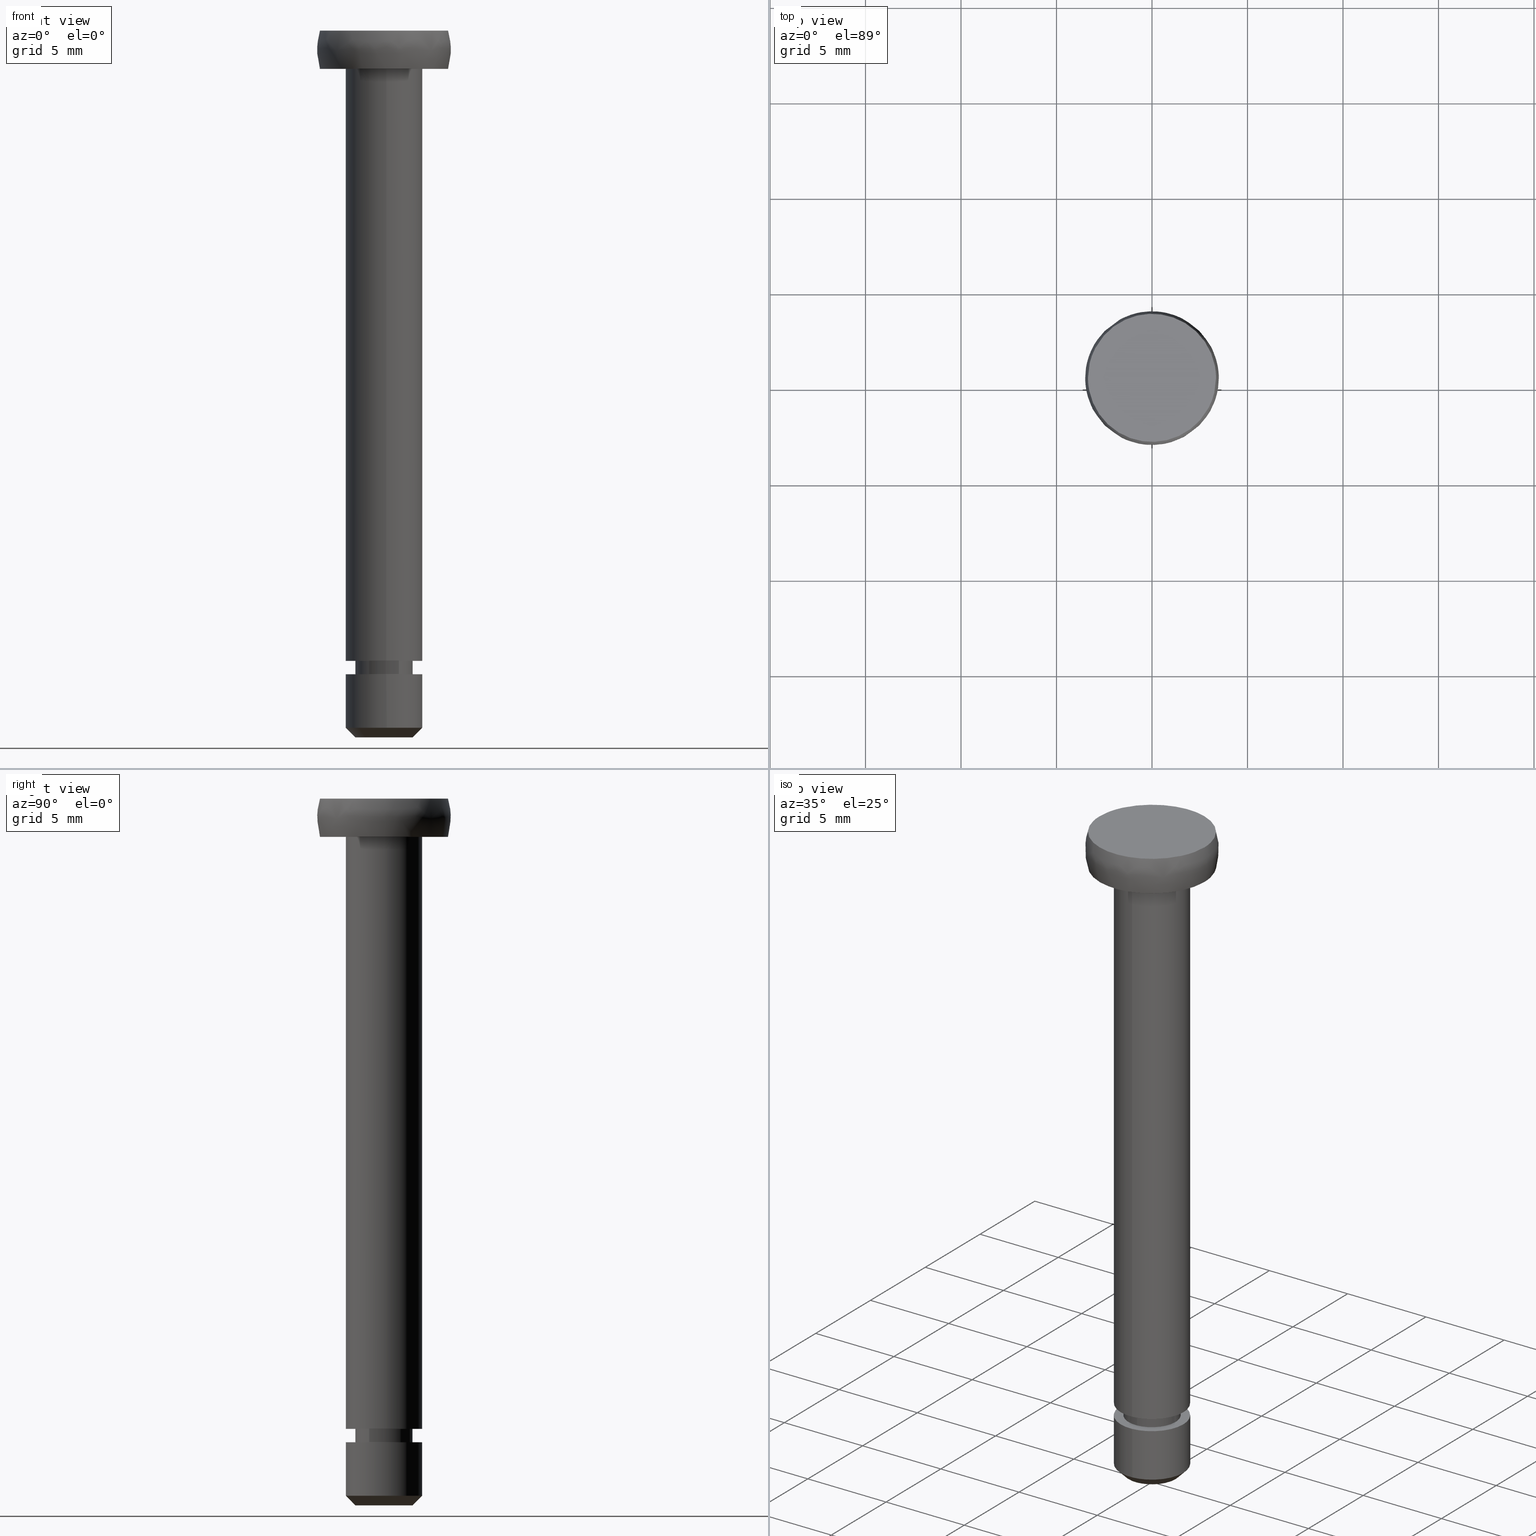
[diagram: canonical four-view strip — front | top / right | iso, engineering-drawing reading convention]
A machine part, canonical four-view strip (front | top / right | iso — engineering-drawing reading convention). The complete STEP part file that produces these views, byte-faithful:
ISO-10303-21;
HEADER;
/****************************************************************
 * Generated by software with PDE/Lib inside                    *
 * PDElib Version 4.4.1-0003, patched  Thursday August 19 11:58 *
 * International Technegroup Inc. (www.iti-oh.com)              *
 ****************************************************************/
FILE_DESCRIPTION((''),'2;1');
FILE_NAME('','2005-04-20T08:50:57',(''),(''),'','CADfix','');
FILE_SCHEMA(('AUTOMOTIVE_DESIGN'));
ENDSEC;
DATA;
#5=APPLICATION_CONTEXT('automotive design');
#6=APPLICATION_PROTOCOL_DEFINITION('Draft International Standard','automotive_design',1998,#5);
#7=PRODUCT_CONTEXT('None',#5,'mechanical');
#8=PRODUCT('shaft','','None',(#7));
#9=PRODUCT_RELATED_PRODUCT_CATEGORY('part','description',(#8));
#10=PRODUCT_DEFINITION_FORMATION('None','None',#8);
#11=PRODUCT_DEFINITION_CONTEXT('part definition',#5,'design');
#12=PRODUCT_DEFINITION('None','None',#10,#11);
#18=(NAMED_UNIT(*)PLANE_ANGLE_UNIT()SI_UNIT($,.RADIAN.));
#19=DIMENSIONAL_EXPONENTS(0.0,0.0,0.0,0.0,0.0,0.0,0.0);
#20=PLANE_ANGLE_MEASURE_WITH_UNIT(PLANE_ANGLE_MEASURE(0.017453292500000),#18);
#24=(CONVERSION_BASED_UNIT('DEGREE',#20)NAMED_UNIT(#19)PLANE_ANGLE_UNIT());
#28=(NAMED_UNIT(*)SI_UNIT($,.STERADIAN.)SOLID_ANGLE_UNIT());
#32=(LENGTH_UNIT()NAMED_UNIT(*)SI_UNIT(.MILLI.,.METRE.));
#34=UNCERTAINTY_MEASURE_WITH_UNIT(LENGTH_MEASURE(0.001000000000000),#32,'DISTANCE_ACCURACY_VALUE','');
#36=(GEOMETRIC_REPRESENTATION_CONTEXT(3)GLOBAL_UNCERTAINTY_ASSIGNED_CONTEXT((#34))GLOBAL_UNIT_ASSIGNED_CONTEXT((#24,#28,#32))REPRESENTATION_CONTEXT('None','None'));
#37=AXIS2_PLACEMENT_3D('',#38,#39,#40);
#38=CARTESIAN_POINT('',(0.0,0.0,0.0));
#39=DIRECTION('',(0.0,0.0,1.0));
#40=DIRECTION('',(1.0,0.0,0.0));
#41=ADVANCED_BREP_SHAPE_REPRESENTATION('',(#37,#940),#36);
#42=PRODUCT_DEFINITION_SHAPE('','',#12);
#43=SHAPE_DEFINITION_REPRESENTATION(#42,#41);
#44=CARTESIAN_POINT('',(-0.236068469313517,1.986019052727332,35.774999999999999));
#45=CARTESIAN_POINT('',(-0.179229457275955,1.992775230897211,35.775000000000006));
#46=CARTESIAN_POINT('',(-0.122097079069714,1.996269596843733,35.775000000000013));
#47=CARTESIAN_POINT('',(1.874172517774020,2.118366675913447,35.774999999999999));
#48=CARTESIAN_POINT('',(1.996269596843733,0.122097079069714,35.775000000000013));
#49=CARTESIAN_POINT('',(2.118366675913447,-1.874172517774020,35.774999999999999));
#50=CARTESIAN_POINT('',(0.122097079069714,-1.996269596843733,35.775000000000013));
#51=CARTESIAN_POINT('',(-0.236068469313517,1.986019052727332,3.205624999999998));
#52=CARTESIAN_POINT('',(-0.179229457275955,1.992775230897211,3.205624999999998));
#53=CARTESIAN_POINT('',(-0.122097079069714,1.996269596843733,3.205624999999998));
#54=CARTESIAN_POINT('',(1.874172517774020,2.118366675913447,3.205624999999998));
#55=CARTESIAN_POINT('',(1.996269596843733,0.122097079069714,3.205624999999998));
#56=CARTESIAN_POINT('',(2.118366675913447,-1.874172517774020,3.205624999999998));
#57=CARTESIAN_POINT('',(0.122097079069714,-1.996269596843733,3.205624999999998));
#65=(BOUNDED_SURFACE()B_SPLINE_SURFACE(2,1,((#44,#51),(#45,#52),(#46,#53),(#47,#54),(#48,#55),(#49,#56),(#50,#57)),.UNSPECIFIED.,.F.,.F.,.U.)B_SPLINE_SURFACE_WITH_KNOTS((3,2,2,3),(2,2),(0.0,0.132548339959391,3.446256838944149,6.759965337928908),(0.0,32.569375000000022),.UNSPECIFIED.)GEOMETRIC_REPRESENTATION_ITEM()RATIONAL_B_SPLINE_SURFACE(((0.977505800795127,0.977505800795127),(0.988284271247462,0.988284271247462),(1.0,1.0),(0.707106781186548,0.707106781186548),(1.0,1.0),(0.707106781186548,0.707106781186548),(1.0,1.0)))REPRESENTATION_ITEM('')SURFACE());
#66=CARTESIAN_POINT('',(-0.236068469374056,1.986019052720137,35.0));
#67=VERTEX_POINT('',#66);
#68=CARTESIAN_POINT('',(2.0,0.0,35.0));
#69=VERTEX_POINT('',#68);
#70=CARTESIAN_POINT('',(-0.236068469374056,1.986019052720137,35.0));
#71=CARTESIAN_POINT('',(-0.118448239364999,2.000000000000000,35.000000000000007));
#72=CARTESIAN_POINT('',(0.0,2.0,35.0));
#73=CARTESIAN_POINT('',(2.000000000000000,2.000000000000000,34.999999999999993));
#74=CARTESIAN_POINT('',(2.0,0.0,35.0));
#82=(BOUNDED_CURVE()B_SPLINE_CURVE(2,(#70,#71,#72,#73,#74),.UNSPECIFIED.,.F.,.U.)B_SPLINE_CURVE_WITH_KNOTS((3,2,3),(0.229562473505341,0.250000000000000,0.500000000000000),.UNSPECIFIED.)CURVE()GEOMETRIC_REPRESENTATION_ITEM()RATIONAL_B_SPLINE_CURVE((0.956026754167691,0.976055948321576,1.0,0.707106781186548,1.0))REPRESENTATION_ITEM(''));
#83=EDGE_CURVE('',#67,#69,#82,.T.);
#84=ORIENTED_EDGE('',*,*,#83,.T.);
#85=CARTESIAN_POINT('',(0.122094911865677,-1.996269729393249,35.000000000000007));
#86=VERTEX_POINT('',#85);
#87=CARTESIAN_POINT('',(2.0,0.0,35.0));
#88=CARTESIAN_POINT('',(1.999999999999999,-1.881414180140796,34.999999999999993));
#89=CARTESIAN_POINT('',(0.122094911865677,-1.996269729393250,35.000000000000007));
#97=(BOUNDED_CURVE()B_SPLINE_CURVE(2,(#87,#88,#89),.UNSPECIFIED.,.F.,.U.)B_SPLINE_CURVE_WITH_KNOTS((3,3),(0.500000000000000,0.739333149563436),.UNSPECIFIED.)CURVE()GEOMETRIC_REPRESENTATION_ITEM()RATIONAL_B_SPLINE_CURVE((1.0,0.719603773822415,0.976072443139095))REPRESENTATION_ITEM(''));
#98=EDGE_CURVE('',#69,#86,#97,.T.);
#99=ORIENTED_EDGE('',*,*,#98,.T.);
#100=CARTESIAN_POINT('',(0.122094938045630,-1.996269727792072,4.000000000000001));
#101=VERTEX_POINT('',#100);
#102=CARTESIAN_POINT('',(0.122094911865677,-1.996269729393249,35.000000000000007));
#103=CARTESIAN_POINT('',(0.122094938045630,-1.996269727792072,4.000000000000001));
#104=QUASI_UNIFORM_CURVE('',1,(#102,#103),.UNSPECIFIED.,.F.,.U.);
#105=EDGE_CURVE('',#86,#101,#104,.T.);
#106=ORIENTED_EDGE('',*,*,#105,.T.);
#107=CARTESIAN_POINT('',(2.0,0.0,4.0));
#108=VERTEX_POINT('',#107);
#109=CARTESIAN_POINT('',(2.0,0.0,4.0));
#110=CARTESIAN_POINT('',(2.000000000000000,-1.881414155421005,4.000000000000001));
#111=CARTESIAN_POINT('',(0.122094938045630,-1.996269727792072,4.000000000000001));
#119=(BOUNDED_CURVE()B_SPLINE_CURVE(2,(#109,#110,#111),.UNSPECIFIED.,.F.,.U.)B_SPLINE_CURVE_WITH_KNOTS((3,3),(0.500000000000000,0.739333147300582),.UNSPECIFIED.)CURVE()GEOMETRIC_REPRESENTATION_ITEM()RATIONAL_B_SPLINE_CURVE((1.0,0.719603776473514,0.976072438289359))REPRESENTATION_ITEM(''));
#120=EDGE_CURVE('',#108,#101,#119,.T.);
#121=ORIENTED_EDGE('',*,*,#120,.F.);
#122=CARTESIAN_POINT('',(-0.236068469374056,1.986019052720137,3.999999999999999));
#123=VERTEX_POINT('',#122);
#124=CARTESIAN_POINT('',(-0.236068469374056,1.986019052720137,3.999999999999999));
#125=CARTESIAN_POINT('',(-0.118448239364999,2.000000000000000,4.000000000000001));
#126=CARTESIAN_POINT('',(0.0,2.0,4.0));
#127=CARTESIAN_POINT('',(2.000000000000000,2.000000000000000,4.000000000000000));
#128=CARTESIAN_POINT('',(2.0,0.0,4.0));
#136=(BOUNDED_CURVE()B_SPLINE_CURVE(2,(#124,#125,#126,#127,#128),.UNSPECIFIED.,.F.,.U.)B_SPLINE_CURVE_WITH_KNOTS((3,2,3),(0.229562473505341,0.250000000000000,0.500000000000000),.UNSPECIFIED.)CURVE()GEOMETRIC_REPRESENTATION_ITEM()RATIONAL_B_SPLINE_CURVE((0.956026754167691,0.976055948321576,1.0,0.707106781186548,1.0))REPRESENTATION_ITEM(''));
#137=EDGE_CURVE('',#123,#108,#136,.T.);
#138=ORIENTED_EDGE('',*,*,#137,.F.);
#139=CARTESIAN_POINT('',(-0.236068469374056,1.986019052720137,35.0));
#140=CARTESIAN_POINT('',(-0.236068469374056,1.986019052720137,3.999999999999999));
#141=QUASI_UNIFORM_CURVE('',1,(#139,#140),.UNSPECIFIED.,.F.,.U.);
#142=EDGE_CURVE('',#67,#123,#141,.T.);
#143=ORIENTED_EDGE('',*,*,#142,.F.);
#144=EDGE_LOOP('',(#84,#99,#106,#121,#138,#143));
#145=FACE_OUTER_BOUND('',#144,.T.);
#146=ADVANCED_FACE('',(#145),#65,.T.);
#147=CARTESIAN_POINT('',(0.122097079069714,-1.996269596843733,35.775000000000013));
#148=CARTESIAN_POINT('',(-1.874172517774020,-2.118366675913447,35.774999999999999));
#149=CARTESIAN_POINT('',(-1.996269596843733,-0.122097079069714,35.775000000000013));
#150=CARTESIAN_POINT('',(-2.111572393465055,1.763086981679002,35.775000000000013));
#151=CARTESIAN_POINT('',(-0.236068469313517,1.986019052727332,35.774999999999999));
#152=CARTESIAN_POINT('',(0.122097079069714,-1.996269596843733,3.205624999999998));
#153=CARTESIAN_POINT('',(-1.874172517774020,-2.118366675913447,3.205624999999998));
#154=CARTESIAN_POINT('',(-1.996269596843733,-0.122097079069714,3.205624999999998));
#155=CARTESIAN_POINT('',(-2.111572393465055,1.763086981679002,3.205624999999998));
#156=CARTESIAN_POINT('',(-0.236068469313517,1.986019052727332,3.205624999999998));
#164=(BOUNDED_SURFACE()B_SPLINE_SURFACE(2,1,((#147,#152),(#148,#153),(#149,#154),(#150,#155),(#151,#156)),.UNSPECIFIED.,.F.,.F.,.U.)B_SPLINE_SURFACE_WITH_KNOTS((3,2,3),(2,2),(0.0,3.313708498984759,6.494868658010128),(0.0,32.569375000000008),.UNSPECIFIED.)GEOMETRIC_REPRESENTATION_ITEM()RATIONAL_B_SPLINE_SURFACE(((1.0,1.0),(0.707106781186548,0.707106781186548),(1.0,1.0),(0.718822509939086,0.718822509939086),(0.977505800795127,0.977505800795127)))REPRESENTATION_ITEM('')SURFACE());
#165=CARTESIAN_POINT('',(-2.0,0.0,35.0));
#166=VERTEX_POINT('',#165);
#167=CARTESIAN_POINT('',(-2.0,0.0,35.0));
#168=CARTESIAN_POINT('',(-2.000000000000000,1.776349051793678,34.999999999999993));
#169=CARTESIAN_POINT('',(-0.236068469374056,1.986019052720137,35.000000000000007));
#177=(BOUNDED_CURVE()B_SPLINE_CURVE(2,(#167,#168,#169),.UNSPECIFIED.,.F.,.U.)B_SPLINE_CURVE_WITH_KNOTS((3,3),(0.0,0.229562473505341),.UNSPECIFIED.)CURVE()GEOMETRIC_REPRESENTATION_ITEM()RATIONAL_B_SPLINE_CURVE((1.0,0.731050832864971,0.956026754167691))REPRESENTATION_ITEM(''));
#178=EDGE_CURVE('',#166,#67,#177,.T.);
#179=ORIENTED_EDGE('',*,*,#178,.T.);
#180=ORIENTED_EDGE('',*,*,#142,.T.);
#181=CARTESIAN_POINT('',(-2.0,0.0,4.0));
#182=VERTEX_POINT('',#181);
#183=CARTESIAN_POINT('',(-2.0,0.0,4.0));
#184=CARTESIAN_POINT('',(-2.000000000000000,1.776349051793678,4.0));
#185=CARTESIAN_POINT('',(-0.236068469374056,1.986019052720137,3.999999999999999));
#193=(BOUNDED_CURVE()B_SPLINE_CURVE(2,(#183,#184,#185),.UNSPECIFIED.,.F.,.U.)B_SPLINE_CURVE_WITH_KNOTS((3,3),(0.0,0.229562473505341),.UNSPECIFIED.)CURVE()GEOMETRIC_REPRESENTATION_ITEM()RATIONAL_B_SPLINE_CURVE((1.0,0.731050832864971,0.956026754167691))REPRESENTATION_ITEM(''));
#194=EDGE_CURVE('',#182,#123,#193,.T.);
#195=ORIENTED_EDGE('',*,*,#194,.F.);
#196=CARTESIAN_POINT('',(0.122094938045630,-1.996269727792072,4.000000000000001));
#197=CARTESIAN_POINT('',(0.061104453083612,-2.000000000000000,4.000000000000001));
#198=CARTESIAN_POINT('',(0.0,-2.0,4.0));
#199=CARTESIAN_POINT('',(-2.000000000000000,-2.000000000000000,4.000000000000000));
#200=CARTESIAN_POINT('',(-2.0,0.0,4.0));
#208=(BOUNDED_CURVE()B_SPLINE_CURVE(2,(#196,#197,#198,#199,#200),.UNSPECIFIED.,.F.,.U.)B_SPLINE_CURVE_WITH_KNOTS((3,2,3),(0.739333147300582,0.750000000000000,1.0),.UNSPECIFIED.)CURVE()GEOMETRIC_REPRESENTATION_ITEM()RATIONAL_B_SPLINE_CURVE((0.976072438289359,0.987503004713034,1.0,0.707106781186548,1.0))REPRESENTATION_ITEM(''));
#209=EDGE_CURVE('',#101,#182,#208,.T.);
#210=ORIENTED_EDGE('',*,*,#209,.F.);
#211=ORIENTED_EDGE('',*,*,#105,.F.);
#212=CARTESIAN_POINT('',(0.122094911865677,-1.996269729393250,35.000000000000007));
#213=CARTESIAN_POINT('',(0.061104439956935,-2.000000000000000,35.0));
#214=CARTESIAN_POINT('',(0.0,-2.0,35.0));
#215=CARTESIAN_POINT('',(-2.000000000000000,-2.000000000000000,34.999999999999993));
#216=CARTESIAN_POINT('',(-2.0,0.0,35.0));
#224=(BOUNDED_CURVE()B_SPLINE_CURVE(2,(#212,#213,#214,#215,#216),.UNSPECIFIED.,.F.,.U.)B_SPLINE_CURVE_WITH_KNOTS((3,2,3),(0.739333149563436,0.750000000000000,1.0),.UNSPECIFIED.)CURVE()GEOMETRIC_REPRESENTATION_ITEM()RATIONAL_B_SPLINE_CURVE((0.976072443139095,0.987503007364133,1.0,0.707106781186548,1.0))REPRESENTATION_ITEM(''));
#225=EDGE_CURVE('',#86,#166,#224,.T.);
#226=ORIENTED_EDGE('',*,*,#225,.T.);
#227=EDGE_LOOP('',(#179,#180,#195,#210,#211,#226));
#228=FACE_OUTER_BOUND('',#227,.T.);
#229=ADVANCED_FACE('',(#228),#164,.T.);
#230=CARTESIAN_POINT('',(-0.177051351985138,1.489514289545500,4.017499925000000));
#231=CARTESIAN_POINT('',(-0.134422092956966,1.494581423172908,4.017499925000000));
#232=CARTESIAN_POINT('',(-0.091572809302285,1.497202197632800,4.017499925000000));
#233=CARTESIAN_POINT('',(1.405629388330515,1.588775006935085,4.017499925000001));
#234=CARTESIAN_POINT('',(1.497202197632800,0.091572809302285,4.017499925000000));
#235=CARTESIAN_POINT('',(1.588775006935085,-1.405629388330515,4.017499925000001));
#236=CARTESIAN_POINT('',(0.091572809302285,-1.497202197632800,4.017499925000000));
#237=CARTESIAN_POINT('',(-0.177051351985138,1.489514289545500,3.282065576875000));
#238=CARTESIAN_POINT('',(-0.134422092956966,1.494581423172908,3.282065576875000));
#239=CARTESIAN_POINT('',(-0.091572809302285,1.497202197632800,3.282065576875000));
#240=CARTESIAN_POINT('',(1.405629388330515,1.588775006935085,3.282065576874999));
#241=CARTESIAN_POINT('',(1.497202197632800,0.091572809302285,3.282065576875000));
#242=CARTESIAN_POINT('',(1.588775006935085,-1.405629388330515,3.282065576874999));
#243=CARTESIAN_POINT('',(0.091572809302285,-1.497202197632800,3.282065576875000));
#251=(BOUNDED_SURFACE()B_SPLINE_SURFACE(2,1,((#230,#237),(#231,#238),(#232,#239),(#233,#240),(#234,#241),(#235,#242),(#236,#243)),.UNSPECIFIED.,.F.,.F.,.U.)B_SPLINE_SURFACE_WITH_KNOTS((3,2,2,3),(2,2),(3.078760800517997,3.141592653589793,4.712388980384690,6.283185307179586),(0.0,1.0),.UNSPECIFIED.)GEOMETRIC_REPRESENTATION_ITEM()RATIONAL_B_SPLINE_SURFACE(((0.977505800795127,0.977505800795127),(0.988284271247462,0.988284271247462),(1.0,1.0),(0.707106781186548,0.707106781186548),(1.0,1.0),(0.707106781186548,0.707106781186548),(1.0,1.0)))REPRESENTATION_ITEM('')SURFACE());
#252=CARTESIAN_POINT('',(-0.177051352064347,1.489514289536084,4.0));
#253=VERTEX_POINT('',#252);
#254=CARTESIAN_POINT('',(1.500000000000000,0.0,4.0));
#255=VERTEX_POINT('',#254);
#256=CARTESIAN_POINT('',(-0.177051352064347,1.489514289536085,4.0));
#257=CARTESIAN_POINT('',(-0.088836179557912,1.500000000000000,4.0));
#258=CARTESIAN_POINT('',(0.0,1.500000000000000,4.0));
#259=CARTESIAN_POINT('',(1.500000000000000,1.500000000000000,4.000000000000000));
#260=CARTESIAN_POINT('',(1.500000000000000,0.0,4.0));
#268=(BOUNDED_CURVE()B_SPLINE_CURVE(2,(#256,#257,#258,#259,#260),.UNSPECIFIED.,.F.,.U.)B_SPLINE_CURVE_WITH_KNOTS((3,2,3),(0.229562473497670,0.250000000000000,0.500000000000000),.UNSPECIFIED.)CURVE()GEOMETRIC_REPRESENTATION_ITEM()RATIONAL_B_SPLINE_CURVE((0.956026754152655,0.976055948312589,1.0,0.707106781186548,1.0))REPRESENTATION_ITEM(''));
#269=EDGE_CURVE('',#253,#255,#268,.T.);
#270=ORIENTED_EDGE('',*,*,#269,.T.);
#271=CARTESIAN_POINT('',(0.091572809399061,-1.497202197626881,4.0));
#272=VERTEX_POINT('',#271);
#273=CARTESIAN_POINT('',(1.500000000000000,0.0,4.0));
#274=CARTESIAN_POINT('',(1.500000000000001,-1.411059100175790,4.000000000000000));
#275=CARTESIAN_POINT('',(0.091572809399061,-1.497202197626881,4.000000000000001));
#283=(BOUNDED_CURVE()B_SPLINE_CURVE(2,(#273,#274,#275),.UNSPECIFIED.,.F.,.U.)B_SPLINE_CURVE_WITH_KNOTS((3,3),(0.500000000000000,0.739332962219663),.UNSPECIFIED.)CURVE()GEOMETRIC_REPRESENTATION_ITEM()RATIONAL_B_SPLINE_CURVE((1.0,0.719603993309298,0.976072041625397))REPRESENTATION_ITEM(''));
#284=EDGE_CURVE('',#255,#272,#283,.T.);
#285=ORIENTED_EDGE('',*,*,#284,.T.);
#286=CARTESIAN_POINT('',(0.091572809399061,-1.497202197626881,3.300003000000000));
#287=VERTEX_POINT('',#286);
#288=CARTESIAN_POINT('',(0.091572809399061,-1.497202197626881,4.0));
#289=CARTESIAN_POINT('',(0.091572809399061,-1.497202197626881,3.300003000000000));
#290=QUASI_UNIFORM_CURVE('',1,(#288,#289),.UNSPECIFIED.,.F.,.U.);
#291=EDGE_CURVE('',#272,#287,#290,.T.);
#292=ORIENTED_EDGE('',*,*,#291,.T.);
#293=CARTESIAN_POINT('',(1.500000000000000,0.0,3.300003000000000));
#294=VERTEX_POINT('',#293);
#295=CARTESIAN_POINT('',(1.500000000000000,0.0,3.300003000000000));
#296=CARTESIAN_POINT('',(1.500000000000001,-1.411059100175790,3.300003000000001));
#297=CARTESIAN_POINT('',(0.091572809399061,-1.497202197626881,3.300003000000000));
#305=(BOUNDED_CURVE()B_SPLINE_CURVE(2,(#295,#296,#297),.UNSPECIFIED.,.F.,.U.)B_SPLINE_CURVE_WITH_KNOTS((3,3),(0.500000000000000,0.739332962219663),.UNSPECIFIED.)CURVE()GEOMETRIC_REPRESENTATION_ITEM()RATIONAL_B_SPLINE_CURVE((1.0,0.719603993309298,0.976072041625397))REPRESENTATION_ITEM(''));
#306=EDGE_CURVE('',#294,#287,#305,.T.);
#307=ORIENTED_EDGE('',*,*,#306,.F.);
#308=CARTESIAN_POINT('',(-0.177051352064347,1.489514289536084,3.300003000000000));
#309=VERTEX_POINT('',#308);
#310=CARTESIAN_POINT('',(-0.177051352064347,1.489514289536085,3.300003000000000));
#311=CARTESIAN_POINT('',(-0.088836179557912,1.500000000000000,3.300003000000000));
#312=CARTESIAN_POINT('',(0.0,1.500000000000000,3.300003000000000));
#313=CARTESIAN_POINT('',(1.500000000000000,1.500000000000000,3.300003000000001));
#314=CARTESIAN_POINT('',(1.500000000000000,0.0,3.300003000000000));
#322=(BOUNDED_CURVE()B_SPLINE_CURVE(2,(#310,#311,#312,#313,#314),.UNSPECIFIED.,.F.,.U.)B_SPLINE_CURVE_WITH_KNOTS((3,2,3),(0.229562473497670,0.250000000000000,0.500000000000000),.UNSPECIFIED.)CURVE()GEOMETRIC_REPRESENTATION_ITEM()RATIONAL_B_SPLINE_CURVE((0.956026754152655,0.976055948312589,1.0,0.707106781186548,1.0))REPRESENTATION_ITEM(''));
#323=EDGE_CURVE('',#309,#294,#322,.T.);
#324=ORIENTED_EDGE('',*,*,#323,.F.);
#325=CARTESIAN_POINT('',(-0.177051352064347,1.489514289536084,4.0));
#326=CARTESIAN_POINT('',(-0.177051352064347,1.489514289536084,3.300003000000000));
#327=QUASI_UNIFORM_CURVE('',1,(#325,#326),.UNSPECIFIED.,.F.,.U.);
#328=EDGE_CURVE('',#253,#309,#327,.T.);
#329=ORIENTED_EDGE('',*,*,#328,.F.);
#330=EDGE_LOOP('',(#270,#285,#292,#307,#324,#329));
#331=FACE_OUTER_BOUND('',#330,.T.);
#332=ADVANCED_FACE('',(#331),#251,.T.);
#333=CARTESIAN_POINT('',(0.091572809302285,-1.497202197632800,4.017499925000000));
#334=CARTESIAN_POINT('',(-1.405629388330515,-1.588775006935085,4.017499925000001));
#335=CARTESIAN_POINT('',(-1.497202197632800,-0.091572809302285,4.017499925000000));
#336=CARTESIAN_POINT('',(-1.583679295098791,1.322315236259252,4.017499925000000));
#337=CARTESIAN_POINT('',(-0.177051351985138,1.489514289545500,4.017499925000000));
#338=CARTESIAN_POINT('',(0.091572809302285,-1.497202197632800,3.282065576875000));
#339=CARTESIAN_POINT('',(-1.405629388330515,-1.588775006935085,3.282065576874999));
#340=CARTESIAN_POINT('',(-1.497202197632800,-0.091572809302285,3.282065576875000));
#341=CARTESIAN_POINT('',(-1.583679295098791,1.322315236259252,3.282065576874999));
#342=CARTESIAN_POINT('',(-0.177051351985138,1.489514289545500,3.282065576875000));
#350=(BOUNDED_SURFACE()B_SPLINE_SURFACE(2,1,((#333,#338),(#334,#339),(#335,#340),(#336,#341),(#337,#342)),.UNSPECIFIED.,.F.,.F.,.U.)B_SPLINE_SURFACE_WITH_KNOTS((3,2,3),(2,2),(0.0,1.570796326794897,3.078760800517997),(0.0,1.0),.UNSPECIFIED.)GEOMETRIC_REPRESENTATION_ITEM()RATIONAL_B_SPLINE_SURFACE(((1.0,1.0),(0.707106781186548,0.707106781186548),(1.0,1.0),(0.718822509939086,0.718822509939086),(0.977505800795127,0.977505800795127)))REPRESENTATION_ITEM('')SURFACE());
#351=CARTESIAN_POINT('',(-1.500000000000000,0.0,4.0));
#352=VERTEX_POINT('',#351);
#353=CARTESIAN_POINT('',(-1.500000000000000,0.0,4.0));
#354=CARTESIAN_POINT('',(-1.500000000000000,1.332261788784360,4.000000000000000));
#355=CARTESIAN_POINT('',(-0.177051352064347,1.489514289536085,4.0));
#363=(BOUNDED_CURVE()B_SPLINE_CURVE(2,(#353,#354,#355),.UNSPECIFIED.,.F.,.U.)B_SPLINE_CURVE_WITH_KNOTS((3,3),(0.0,0.229562473497670),.UNSPECIFIED.)CURVE()GEOMETRIC_REPRESENTATION_ITEM()RATIONAL_B_SPLINE_CURVE((1.0,0.731050832873959,0.956026754152655))REPRESENTATION_ITEM(''));
#364=EDGE_CURVE('',#352,#253,#363,.T.);
#365=ORIENTED_EDGE('',*,*,#364,.T.);
#366=ORIENTED_EDGE('',*,*,#328,.T.);
#367=CARTESIAN_POINT('',(-1.500000000000000,0.0,3.300003000000000));
#368=VERTEX_POINT('',#367);
#369=CARTESIAN_POINT('',(-1.500000000000000,0.0,3.300003000000000));
#370=CARTESIAN_POINT('',(-1.500000000000000,1.332261788784360,3.300003000000000));
#371=CARTESIAN_POINT('',(-0.177051352064347,1.489514289536085,3.300003000000000));
#379=(BOUNDED_CURVE()B_SPLINE_CURVE(2,(#369,#370,#371),.UNSPECIFIED.,.F.,.U.)B_SPLINE_CURVE_WITH_KNOTS((3,3),(0.0,0.229562473497670),.UNSPECIFIED.)CURVE()GEOMETRIC_REPRESENTATION_ITEM()RATIONAL_B_SPLINE_CURVE((1.0,0.731050832873959,0.956026754152655))REPRESENTATION_ITEM(''));
#380=EDGE_CURVE('',#368,#309,#379,.T.);
#381=ORIENTED_EDGE('',*,*,#380,.F.);
#382=CARTESIAN_POINT('',(0.091572809399061,-1.497202197626881,3.300003000000001));
#383=CARTESIAN_POINT('',(0.045829145044930,-1.500000000000000,3.300003000000001));
#384=CARTESIAN_POINT('',(0.0,-1.500000000000000,3.300003000000000));
#385=CARTESIAN_POINT('',(-1.500000000000000,-1.500000000000000,3.300003000000001));
#386=CARTESIAN_POINT('',(-1.500000000000000,0.0,3.300003000000000));
#394=(BOUNDED_CURVE()B_SPLINE_CURVE(2,(#382,#383,#384,#385,#386),.UNSPECIFIED.,.F.,.U.)B_SPLINE_CURVE_WITH_KNOTS((3,2,3),(0.739332962219662,0.750000000000000,1.0),.UNSPECIFIED.)CURVE()GEOMETRIC_REPRESENTATION_ITEM()RATIONAL_B_SPLINE_CURVE((0.976072041625396,0.987502787877249,1.0,0.707106781186548,1.0))REPRESENTATION_ITEM(''));
#395=EDGE_CURVE('',#287,#368,#394,.T.);
#396=ORIENTED_EDGE('',*,*,#395,.F.);
#397=ORIENTED_EDGE('',*,*,#291,.F.);
#398=CARTESIAN_POINT('',(0.091572809399061,-1.497202197626881,4.000000000000001));
#399=CARTESIAN_POINT('',(0.045829145044930,-1.500000000000000,4.000000000000001));
#400=CARTESIAN_POINT('',(0.0,-1.500000000000000,4.0));
#401=CARTESIAN_POINT('',(-1.500000000000000,-1.500000000000000,4.000000000000000));
#402=CARTESIAN_POINT('',(-1.500000000000000,0.0,4.0));
#410=(BOUNDED_CURVE()B_SPLINE_CURVE(2,(#398,#399,#400,#401,#402),.UNSPECIFIED.,.F.,.U.)B_SPLINE_CURVE_WITH_KNOTS((3,2,3),(0.739332962219662,0.750000000000000,1.0),.UNSPECIFIED.)CURVE()GEOMETRIC_REPRESENTATION_ITEM()RATIONAL_B_SPLINE_CURVE((0.976072041625396,0.987502787877249,1.0,0.707106781186548,1.0))REPRESENTATION_ITEM(''));
#411=EDGE_CURVE('',#272,#352,#410,.T.);
#412=ORIENTED_EDGE('',*,*,#411,.T.);
#413=EDGE_LOOP('',(#365,#366,#381,#396,#397,#412));
#414=FACE_OUTER_BOUND('',#413,.T.);
#415=ADVANCED_FACE('',(#414),#350,.T.);
#416=CARTESIAN_POINT('',(0.228201329480721,1.986938386871427,3.370003075000001));
#417=CARTESIAN_POINT('',(1.893911919826415,1.795630305172163,3.370003075000001));
#418=CARTESIAN_POINT('',(1.996269596843733,0.122097079069714,3.370003075000001));
#419=CARTESIAN_POINT('',(2.118366675913447,-1.874172517774020,3.370003075000001));
#420=CARTESIAN_POINT('',(0.122097079069714,-1.996269596843733,3.370003075000001));
#421=CARTESIAN_POINT('',(0.228201329480721,1.986938386871427,0.428249923124985));
#422=CARTESIAN_POINT('',(1.893911919826415,1.795630305172163,0.428249923124985));
#423=CARTESIAN_POINT('',(1.996269596843733,0.122097079069714,0.428249923124985));
#424=CARTESIAN_POINT('',(2.118366675913447,-1.874172517774020,0.428249923124985));
#425=CARTESIAN_POINT('',(0.122097079069714,-1.996269596843733,0.428249923124985));
#433=(BOUNDED_SURFACE()B_SPLINE_SURFACE(2,1,((#416,#421),(#417,#422),(#418,#423),(#419,#424),(#420,#425)),.UNSPECIFIED.,.F.,.F.,.U.)B_SPLINE_SURFACE_WITH_KNOTS((3,2,3),(2,2),(0.0,2.916063479106587,6.229771978091346),(0.0,2.941753151875016),.UNSPECIFIED.)GEOMETRIC_REPRESENTATION_ITEM()RATIONAL_B_SPLINE_SURFACE(((0.938140952186599,0.938140952186599),(0.742253967444162,0.742253967444162),(1.0,1.0),(0.707106781186548,0.707106781186548),(1.0,1.0)))REPRESENTATION_ITEM('')SURFACE());
#434=CARTESIAN_POINT('',(0.228201329546129,1.986938386863915,0.499999999999986));
#435=VERTEX_POINT('',#434);
#436=CARTESIAN_POINT('',(2.0,0.0,0.499999999999986));
#437=VERTEX_POINT('',#436);
#438=CARTESIAN_POINT('',(0.228201329546129,1.986938386863915,0.499999999999986));
#439=CARTESIAN_POINT('',(2.0,1.783446011319636,0.499999999999986));
#440=CARTESIAN_POINT('',(2.0,0.0,0.499999999999986));
#448=(BOUNDED_CURVE()B_SPLINE_CURVE(2,(#438,#439,#440),.UNSPECIFIED.,.F.,.U.)B_SPLINE_CURVE_WITH_KNOTS((3,3),(0.269767755887751,0.500000000000000),.UNSPECIFIED.)CURVE()GEOMETRIC_REPRESENTATION_ITEM()RATIONAL_B_SPLINE_CURVE((0.957343736438685,0.730266147789276,1.0))REPRESENTATION_ITEM(''));
#449=EDGE_CURVE('',#435,#437,#448,.T.);
#450=ORIENTED_EDGE('',*,*,#449,.F.);
#451=CARTESIAN_POINT('',(0.228201329553121,1.986938386863112,3.300003000000000));
#452=VERTEX_POINT('',#451);
#453=CARTESIAN_POINT('',(0.228201329553121,1.986938386863112,3.300003000000000));
#454=CARTESIAN_POINT('',(0.228201329546129,1.986938386863915,0.499999999999986));
#455=QUASI_UNIFORM_CURVE('',1,(#453,#454),.UNSPECIFIED.,.F.,.U.);
#456=EDGE_CURVE('',#452,#435,#455,.T.);
#457=ORIENTED_EDGE('',*,*,#456,.F.);
#458=CARTESIAN_POINT('',(2.0,0.0,3.300003000000000));
#459=VERTEX_POINT('',#458);
#460=CARTESIAN_POINT('',(0.228201329553121,1.986938386863113,3.300003000000000));
#461=CARTESIAN_POINT('',(2.000000000000000,1.783446011307003,3.300003000000000));
#462=CARTESIAN_POINT('',(2.0,0.0,3.300003000000000));
#470=(BOUNDED_CURVE()B_SPLINE_CURVE(2,(#460,#461,#462),.UNSPECIFIED.,.F.,.U.)B_SPLINE_CURVE_WITH_KNOTS((3,3),(0.269767755888942,0.500000000000000),.UNSPECIFIED.)CURVE()GEOMETRIC_REPRESENTATION_ITEM()RATIONAL_B_SPLINE_CURVE((0.957343736436335,0.730266147790671,1.0))REPRESENTATION_ITEM(''));
#471=EDGE_CURVE('',#452,#459,#470,.T.);
#472=ORIENTED_EDGE('',*,*,#471,.T.);
#473=CARTESIAN_POINT('',(0.122097270444627,-1.996269585138724,3.300003000000000));
#474=VERTEX_POINT('',#473);
#475=CARTESIAN_POINT('',(2.0,0.0,3.300003000000000));
#476=CARTESIAN_POINT('',(1.999999999999999,-1.881411772409431,3.300003000000001));
#477=CARTESIAN_POINT('',(0.122097270444627,-1.996269585138724,3.300003000000001));
#485=(BOUNDED_CURVE()B_SPLINE_CURVE(2,(#475,#476,#477),.UNSPECIFIED.,.F.,.U.)B_SPLINE_CURVE_WITH_KNOTS((3,3),(0.500000000000000,0.739332929159137),.UNSPECIFIED.)CURVE()GEOMETRIC_REPRESENTATION_ITEM()RATIONAL_B_SPLINE_CURVE((1.0,0.719604032042113,0.976071970770408))REPRESENTATION_ITEM(''));
#486=EDGE_CURVE('',#459,#474,#485,.T.);
#487=ORIENTED_EDGE('',*,*,#486,.T.);
#488=CARTESIAN_POINT('',(0.139507635269696,-1.995052132155349,0.500000000000888));
#489=VERTEX_POINT('',#488);
#490=CARTESIAN_POINT('',(0.122097270444627,-1.996269585138724,3.300003000000000));
#491=CARTESIAN_POINT('',(0.139507635269696,-1.995052132155349,0.500000000000888));
#492=QUASI_UNIFORM_CURVE('',1,(#490,#491),.UNSPECIFIED.,.F.,.U.);
#493=EDGE_CURVE('',#474,#489,#492,.T.);
#494=ORIENTED_EDGE('',*,*,#493,.T.);
#495=CARTESIAN_POINT('',(2.0,0.0,0.499999999999986));
#496=CARTESIAN_POINT('',(1.999997343887232,-1.864992188086876,0.500000000000437));
#497=CARTESIAN_POINT('',(0.139507635269696,-1.995052132155349,0.500000000000888));
#505=(BOUNDED_CURVE()B_SPLINE_CURVE(2,(#495,#496,#497),.UNSPECIFIED.,.F.,.U.)B_SPLINE_CURVE_WITH_KNOTS((3,3),(0.500000000000000,0.737829682996365),.UNSPECIFIED.)CURVE()GEOMETRIC_REPRESENTATION_ITEM()RATIONAL_B_SPLINE_CURVE((1.0,0.721365194471247,0.972871408707751))REPRESENTATION_ITEM(''));
#506=EDGE_CURVE('',#437,#489,#505,.T.);
#507=ORIENTED_EDGE('',*,*,#506,.F.);
#508=EDGE_LOOP('',(#450,#457,#472,#487,#494,#507));
#509=FACE_OUTER_BOUND('',#508,.T.);
#510=ADVANCED_FACE('',(#509),#433,.T.);
#511=CARTESIAN_POINT('',(0.169067162341419,-1.993396783482150,3.370003075000001));
#512=CARTESIAN_POINT('',(0.145697123735198,-1.994826156276324,3.370003075000002));
#513=CARTESIAN_POINT('',(-1.874172517774020,-2.118366675913447,3.370003075000001));
#514=CARTESIAN_POINT('',(-1.996269596843733,-0.122097079069714,3.370003075000001));
#515=CARTESIAN_POINT('',(-2.118366675913447,1.874172517774020,3.370003075000001));
#516=CARTESIAN_POINT('',(-0.122097079069714,1.996269596843733,3.370003075000001));
#517=CARTESIAN_POINT('',(0.053462436193093,2.007007276789556,3.370003075000001));
#518=CARTESIAN_POINT('',(0.244162554987188,1.985105228427872,3.370003075000001));
#519=CARTESIAN_POINT('',(0.260204711626136,1.983262774984456,3.370003075000001));
#520=CARTESIAN_POINT('',(0.169067162341419,-1.993396783482150,0.428249923124985));
#521=CARTESIAN_POINT('',(0.145697123735198,-1.994826156276324,0.428249923124985));
#522=CARTESIAN_POINT('',(-1.874172517774020,-2.118366675913447,0.428249923124985));
#523=CARTESIAN_POINT('',(-1.996269596843733,-0.122097079069714,0.428249923124985));
#524=CARTESIAN_POINT('',(-2.118366675913447,1.874172517774020,0.428249923124985));
#525=CARTESIAN_POINT('',(-0.122097079069714,1.996269596843733,0.428249923124985));
#526=CARTESIAN_POINT('',(0.053462436193093,2.007007276789556,0.428249923124985));
#527=CARTESIAN_POINT('',(0.244162554987188,1.985105228427872,0.428249923124985));
#528=CARTESIAN_POINT('',(0.260204711626136,1.983262774984456,0.428249923124985));
#536=(BOUNDED_SURFACE()B_SPLINE_SURFACE(2,1,((#511,#520),(#512,#521),(#513,#522),(#514,#523),(#515,#524),(#516,#525),(#517,#526),(#518,#527),(#519,#528)),.UNSPECIFIED.,.F.,.F.,.U.)B_SPLINE_SURFACE_WITH_KNOTS((3,1,2,2,1,3),(2,2),(0.0,0.055674309130212,3.369382808114971,6.683091307099731,7.080736326977903,7.115963870190234),(0.0,2.941753151875017),.UNSPECIFIED.)GEOMETRIC_REPRESENTATION_ITEM()RATIONAL_B_SPLINE_SURFACE(((1.009841920380962,1.009841920380962),(1.004920960190481,1.004920960190481),(0.707106781186548,0.707106781186548),(1.0,1.0),(0.707106781186548,0.707106781186548),(1.0,1.0),(0.964852813742386,0.964852813742386),(0.935774536891050,0.935774536891050),(0.933408121595502,0.933408121595502)))REPRESENTATION_ITEM('')SURFACE());
#537=CARTESIAN_POINT('',(-0.156918191469679,1.993834667466965,0.500000000001790));
#538=VERTEX_POINT('',#537);
#539=CARTESIAN_POINT('',(-0.156918191469679,1.993834667466965,0.500000000001790));
#540=CARTESIAN_POINT('',(-0.078580214029250,2.000000000000000,0.499999999999986));
#541=CARTESIAN_POINT('',(0.0,2.0,0.499999999999986));
#542=CARTESIAN_POINT('',(0.114474470116638,2.000000000000000,0.499999999999986));
#543=CARTESIAN_POINT('',(0.228201329546129,1.986938386863915,0.499999999999986));
#551=(BOUNDED_CURVE()B_SPLINE_CURVE(2,(#539,#540,#541,#542,#543),.UNSPECIFIED.,.F.,.U.)B_SPLINE_CURVE_WITH_KNOTS((3,2,3),(0.236331300630386,0.250000000000000,0.269767755887751),.UNSPECIFIED.)CURVE()GEOMETRIC_REPRESENTATION_ITEM()RATIONAL_B_SPLINE_CURVE((0.969723356166846,0.983986122578561,1.0,0.976840633397272,0.957343736438685))REPRESENTATION_ITEM(''));
#552=EDGE_CURVE('',#538,#435,#551,.T.);
#553=ORIENTED_EDGE('',*,*,#552,.F.);
#554=CARTESIAN_POINT('',(-2.0,0.0,0.499999999999986));
#555=VERTEX_POINT('',#554);
#556=CARTESIAN_POINT('',(-2.0,0.0,0.499999999999986));
#557=CARTESIAN_POINT('',(-2.0,1.848780983290655,0.499999999999986));
#558=CARTESIAN_POINT('',(-0.156918191469679,1.993834667466965,0.500000000001790));
#566=(BOUNDED_CURVE()B_SPLINE_CURVE(2,(#556,#557,#558),.UNSPECIFIED.,.F.,.U.)B_SPLINE_CURVE_WITH_KNOTS((3,3),(0.0,0.236331300630386),.UNSPECIFIED.)CURVE()GEOMETRIC_REPRESENTATION_ITEM()RATIONAL_B_SPLINE_CURVE((1.0,0.723120658607986,0.969723356166846))REPRESENTATION_ITEM(''));
#567=EDGE_CURVE('',#555,#538,#566,.T.);
#568=ORIENTED_EDGE('',*,*,#567,.F.);
#569=CARTESIAN_POINT('',(0.139507635269696,-1.995052132155349,0.500000000000888));
#570=CARTESIAN_POINT('',(0.069836313255503,-1.999925268558572,0.500000000000874));
#571=CARTESIAN_POINT('',(-0.000005132977994,-1.999926594995433,0.500000000000858));
#572=CARTESIAN_POINT('',(-2.000002476865227,-1.999964579177339,0.500000000000407));
#573=CARTESIAN_POINT('',(-2.0,0.0,0.499999999999986));
#581=(BOUNDED_CURVE()B_SPLINE_CURVE(2,(#569,#570,#571,#572,#573),.UNSPECIFIED.,.F.,.U.)B_SPLINE_CURVE_WITH_KNOTS((3,2,3),(0.737829682996365,0.750000000000000,1.0),.UNSPECIFIED.)CURVE()GEOMETRIC_REPRESENTATION_ITEM()RATIONAL_B_SPLINE_CURVE((0.972871408707751,0.985741586715301,1.0,0.707106781186548,1.0))REPRESENTATION_ITEM(''));
#582=EDGE_CURVE('',#489,#555,#581,.T.);
#583=ORIENTED_EDGE('',*,*,#582,.F.);
#584=ORIENTED_EDGE('',*,*,#493,.F.);
#585=CARTESIAN_POINT('',(-2.0,0.0,3.300003000000000));
#586=VERTEX_POINT('',#585);
#587=CARTESIAN_POINT('',(0.122097270444627,-1.996269585138724,3.300003000000000));
#588=CARTESIAN_POINT('',(0.061105718508690,-2.000000000000000,3.300003000000000));
#589=CARTESIAN_POINT('',(0.0,-2.0,3.300003000000000));
#590=CARTESIAN_POINT('',(-2.000000000000000,-2.000000000000000,3.300003000000001));
#591=CARTESIAN_POINT('',(-2.0,0.0,3.300003000000000));
#599=(BOUNDED_CURVE()B_SPLINE_CURVE(2,(#587,#588,#589,#590,#591),.UNSPECIFIED.,.F.,.U.)B_SPLINE_CURVE_WITH_KNOTS((3,2,3),(0.739332929159136,0.750000000000000,1.0),.UNSPECIFIED.)CURVE()GEOMETRIC_REPRESENTATION_ITEM()RATIONAL_B_SPLINE_CURVE((0.976071970770405,0.987502749144433,1.0,0.707106781186548,1.0))REPRESENTATION_ITEM(''));
#600=EDGE_CURVE('',#474,#586,#599,.T.);
#601=ORIENTED_EDGE('',*,*,#600,.T.);
#602=CARTESIAN_POINT('',(-2.0,0.0,3.300003000000000));
#603=CARTESIAN_POINT('',(-2.000000000000000,2.000000000000000,3.300003000000001));
#604=CARTESIAN_POINT('',(0.0,2.0,3.300003000000000));
#605=CARTESIAN_POINT('',(0.114474470123699,2.000000000000000,3.300003000000001));
#606=CARTESIAN_POINT('',(0.228201329553121,1.986938386863112,3.300003000000000));
#614=(BOUNDED_CURVE()B_SPLINE_CURVE(2,(#602,#603,#604,#605,#606),.UNSPECIFIED.,.F.,.U.)B_SPLINE_CURVE_WITH_KNOTS((3,2,3),(0.0,0.250000000000000,0.269767755888942),.UNSPECIFIED.)CURVE()GEOMETRIC_REPRESENTATION_ITEM()RATIONAL_B_SPLINE_CURVE((1.0,0.707106781186548,1.0,0.976840633395876,0.957343736436336))REPRESENTATION_ITEM(''));
#615=EDGE_CURVE('',#586,#452,#614,.T.);
#616=ORIENTED_EDGE('',*,*,#615,.T.);
#617=ORIENTED_EDGE('',*,*,#456,.T.);
#618=EDGE_LOOP('',(#553,#568,#583,#584,#601,#616,#617));
#619=FACE_OUTER_BOUND('',#618,.T.);
#620=ADVANCED_FACE('',(#619),#536,.T.);
#621=CARTESIAN_POINT('',(-0.116707904895170,1.482914533928028,-0.012500000000000));
#622=CARTESIAN_POINT('',(-1.599622438823199,1.366206629032857,-0.012500000000000));
#623=CARTESIAN_POINT('',(-1.482914533928028,-0.116707904895170,-0.012500000000000));
#624=CARTESIAN_POINT('',(-1.366206629032857,-1.599622438823199,-0.012500000000000));
#625=CARTESIAN_POINT('',(0.116707904895170,-1.482914533928028,-0.012500000000000));
#626=CARTESIAN_POINT('',(-0.157923448619704,2.006607670804712,0.512812499999986));
#627=CARTESIAN_POINT('',(-2.164531119424416,1.848684222185008,0.512812499999986));
#628=CARTESIAN_POINT('',(-2.006607670804712,-0.157923448619704,0.512812499999986));
#629=CARTESIAN_POINT('',(-1.848684222185008,-2.164531119424416,0.512812499999986));
#630=CARTESIAN_POINT('',(0.157923448619704,-2.006607670804712,0.512812499999986));
#638=(BOUNDED_SURFACE()B_SPLINE_SURFACE(2,1,((#621,#626),(#622,#627),(#623,#628),(#624,#629),(#625,#630)),.UNSPECIFIED.,.F.,.F.,.U.)B_SPLINE_SURFACE_WITH_KNOTS((3,2,3),(2,2),(0.0,3.334936944056381,6.669873888112763),(0.0,1.0),.UNSPECIFIED.)GEOMETRIC_REPRESENTATION_ITEM()RATIONAL_B_SPLINE_SURFACE(((1.0,1.0),(0.707106781186548,0.707106781186548),(1.0,1.0),(0.707106781186548,0.707106781186548),(1.0,1.0)))REPRESENTATION_ITEM('')SURFACE());
#639=ORIENTED_EDGE('',*,*,#567,.T.);
#640=CARTESIAN_POINT('',(-0.117688643895257,1.495376000615308,3.937924E-011));
#641=VERTEX_POINT('',#640);
#642=CARTESIAN_POINT('',(-0.117688643895257,1.495376000615308,3.937924E-011));
#643=CARTESIAN_POINT('',(-0.156918191469679,1.993834667466965,0.500000000001790));
#644=QUASI_UNIFORM_CURVE('',1,(#642,#643),.UNSPECIFIED.,.F.,.U.);
#645=EDGE_CURVE('',#641,#538,#644,.T.);
#646=ORIENTED_EDGE('',*,*,#645,.F.);
#647=CARTESIAN_POINT('',(-1.500000000000000,0.0,0.0));
#648=VERTEX_POINT('',#647);
#649=CARTESIAN_POINT('',(-1.500000000000000,0.0,0.0));
#650=CARTESIAN_POINT('',(-1.500000000000001,1.386585736928497,0.0));
#651=CARTESIAN_POINT('',(-0.117688643895257,1.495376000615308,3.937924E-011));
#659=(BOUNDED_CURVE()B_SPLINE_CURVE(2,(#649,#650,#651),.UNSPECIFIED.,.F.,.U.)B_SPLINE_CURVE_WITH_KNOTS((3,3),(0.0,0.236331300563893),.UNSPECIFIED.)CURVE()GEOMETRIC_REPRESENTATION_ITEM()RATIONAL_B_SPLINE_CURVE((1.0,0.723120658685887,0.969723356028082))REPRESENTATION_ITEM(''));
#660=EDGE_CURVE('',#648,#641,#659,.T.);
#661=ORIENTED_EDGE('',*,*,#660,.F.);
#662=CARTESIAN_POINT('',(0.117688643895257,-1.495376000615308,3.937929E-011));
#663=VERTEX_POINT('',#662);
#664=CARTESIAN_POINT('',(0.117688643895257,-1.495376000615307,3.937929E-011));
#665=CARTESIAN_POINT('',(0.058935160813298,-1.500000000000000,0.0));
#666=CARTESIAN_POINT('',(0.0,-1.500000000000000,0.0));
#667=CARTESIAN_POINT('',(-1.500000000000000,-1.500000000000000,0.0));
#668=CARTESIAN_POINT('',(-1.500000000000000,0.0,0.0));
#676=(BOUNDED_CURVE()B_SPLINE_CURVE(2,(#664,#665,#666,#667,#668),.UNSPECIFIED.,.F.,.U.)B_SPLINE_CURVE_WITH_KNOTS((3,2,3),(0.736331300563894,0.750000000000000,1.0),.UNSPECIFIED.)CURVE()GEOMETRIC_REPRESENTATION_ITEM()RATIONAL_B_SPLINE_CURVE((0.969723356028082,0.983986122500661,1.0,0.707106781186548,1.0))REPRESENTATION_ITEM(''));
#677=EDGE_CURVE('',#663,#648,#676,.T.);
#678=ORIENTED_EDGE('',*,*,#677,.F.);
#679=CARTESIAN_POINT('',(0.117688643895257,-1.495376000615308,3.937929E-011));
#680=CARTESIAN_POINT('',(0.139507635269696,-1.995052132155349,0.500000000000888));
#681=QUASI_UNIFORM_CURVE('',1,(#679,#680),.UNSPECIFIED.,.F.,.U.);
#682=EDGE_CURVE('',#663,#489,#681,.T.);
#683=ORIENTED_EDGE('',*,*,#682,.T.);
#684=ORIENTED_EDGE('',*,*,#582,.T.);
#685=EDGE_LOOP('',(#639,#646,#661,#678,#683,#684));
#686=FACE_OUTER_BOUND('',#685,.T.);
#687=ADVANCED_FACE('',(#686),#638,.T.);
#688=CARTESIAN_POINT('',(0.083050346947159,-1.485563441186085,-0.012500000000000));
#689=CARTESIAN_POINT('',(0.099799645584288,-1.484245242795226,-0.012500000000000));
#690=CARTESIAN_POINT('',(1.599622438823199,-1.366206629032857,-0.012500000000000));
#691=CARTESIAN_POINT('',(1.482914533928028,0.116707904895170,-0.012500000000000));
#692=CARTESIAN_POINT('',(1.366206629032857,1.599622438823199,-0.012500000000000));
#693=CARTESIAN_POINT('',(-0.127195234357754,1.482089163199289,-0.012500000000000));
#694=CARTESIAN_POINT('',(-0.137621300904153,1.481268613966621,-0.012500000000000));
#695=CARTESIAN_POINT('',(0.112379681656859,-2.010192042999910,0.512812499999986));
#696=CARTESIAN_POINT('',(0.135044016220252,-2.008408321185726,0.512812499999985));
#697=CARTESIAN_POINT('',(2.164531119424416,-1.848684222185008,0.512812499999986));
#698=CARTESIAN_POINT('',(2.006607670804712,0.157923448619704,0.512812499999986));
#699=CARTESIAN_POINT('',(1.848684222185008,2.164531119424416,0.512812499999986));
#700=CARTESIAN_POINT('',(-0.172114391701322,2.005490819362737,0.512812499999985));
#701=CARTESIAN_POINT('',(-0.186222436790682,2.004380492134246,0.512812499999986));
#709=(BOUNDED_SURFACE()B_SPLINE_SURFACE(2,1,((#688,#695),(#689,#696),(#690,#697),(#691,#698),(#692,#699),(#693,#700),(#694,#701)),.UNSPECIFIED.,.F.,.F.,.U.)B_SPLINE_SURFACE_WITH_KNOTS((3,1,2,1,3),(2,2),(0.0,0.054030798164304,3.388967742220685,6.723904686277066,6.757356948129922),(0.0,1.0),.UNSPECIFIED.)GEOMETRIC_REPRESENTATION_ITEM()RATIONAL_B_SPLINE_SURFACE(((1.009490586871579,1.009490586871579),(1.004745293435790,1.004745293435790),(0.707106781186548,0.707106781186548),(1.0,1.0),(0.707106781186548,0.707106781186548),(1.002937968787727,1.002937968787727),(1.005875937575453,1.005875937575453)))REPRESENTATION_ITEM('')SURFACE());
#710=ORIENTED_EDGE('',*,*,#552,.T.);
#711=ORIENTED_EDGE('',*,*,#449,.T.);
#712=ORIENTED_EDGE('',*,*,#506,.T.);
#713=ORIENTED_EDGE('',*,*,#682,.F.);
#714=CARTESIAN_POINT('',(1.500000000000000,0.0,0.0));
#715=VERTEX_POINT('',#714);
#716=CARTESIAN_POINT('',(1.500000000000000,0.0,0.0));
#717=CARTESIAN_POINT('',(1.500000000000000,-1.386585736928506,0.0));
#718=CARTESIAN_POINT('',(0.117688643895257,-1.495376000615307,3.937929E-011));
#726=(BOUNDED_CURVE()B_SPLINE_CURVE(2,(#716,#717,#718),.UNSPECIFIED.,.F.,.U.)B_SPLINE_CURVE_WITH_KNOTS((3,3),(0.500000000000000,0.736331300563895),.UNSPECIFIED.)CURVE()GEOMETRIC_REPRESENTATION_ITEM()RATIONAL_B_SPLINE_CURVE((1.0,0.723120658685886,0.969723356028084))REPRESENTATION_ITEM(''));
#727=EDGE_CURVE('',#715,#663,#726,.T.);
#728=ORIENTED_EDGE('',*,*,#727,.F.);
#729=CARTESIAN_POINT('',(-0.117688643895257,1.495376000615307,3.937924E-011));
#730=CARTESIAN_POINT('',(-0.058935160813298,1.500000000000000,0.0));
#731=CARTESIAN_POINT('',(0.0,1.500000000000000,0.0));
#732=CARTESIAN_POINT('',(1.500000000000000,1.500000000000000,0.0));
#733=CARTESIAN_POINT('',(1.500000000000000,0.0,0.0));
#741=(BOUNDED_CURVE()B_SPLINE_CURVE(2,(#729,#730,#731,#732,#733),.UNSPECIFIED.,.F.,.U.)B_SPLINE_CURVE_WITH_KNOTS((3,2,3),(0.236331300563894,0.250000000000000,0.500000000000000),.UNSPECIFIED.)CURVE()GEOMETRIC_REPRESENTATION_ITEM()RATIONAL_B_SPLINE_CURVE((0.969723356028082,0.983986122500661,1.0,0.707106781186548,1.0))REPRESENTATION_ITEM(''));
#742=EDGE_CURVE('',#641,#715,#741,.T.);
#743=ORIENTED_EDGE('',*,*,#742,.F.);
#744=ORIENTED_EDGE('',*,*,#645,.T.);
#745=EDGE_LOOP('',(#710,#711,#712,#713,#728,#743,#744));
#746=FACE_OUTER_BOUND('',#745,.T.);
#747=ADVANCED_FACE('',(#746),#709,.T.);
#748=CARTESIAN_POINT('',(-3.689176669006852,-3.689176669006838,37.000000011736653));
#749=CARTESIAN_POINT('',(3.689176908910919,-3.689176669006838,37.000000011736653));
#750=CARTESIAN_POINT('',(-3.689176669006852,3.689176908910905,37.000000011736653));
#751=CARTESIAN_POINT('',(3.689176908910919,3.689176908910905,37.000000011736653));
#752=B_SPLINE_SURFACE_WITH_KNOTS('',1,1,((#748,#750),(#749,#751)),.UNSPECIFIED.,.F.,.F.,.U.,(2,2),(2,2),(0.0,7.378353577917771),(0.0,7.378353577917744),.UNSPECIFIED.);
#753=CARTESIAN_POINT('',(3.354101959251270,0.0,37.000000023473397));
#754=VERTEX_POINT('',#753);
#755=CARTESIAN_POINT('',(-3.354101959251270,0.0,37.000000023473397));
#756=VERTEX_POINT('',#755);
#757=CARTESIAN_POINT('',(3.354101959251270,0.0,37.000000023473397));
#758=CARTESIAN_POINT('',(3.354101959251270,-3.354101959251270,37.000000023473390));
#759=CARTESIAN_POINT('',(0.0,-3.354101959251270,37.000000023473397));
#760=CARTESIAN_POINT('',(-3.354101959251270,-3.354101959251270,37.000000023473390));
#761=CARTESIAN_POINT('',(-3.354101959251270,0.0,37.000000023473397));
#769=(BOUNDED_CURVE()B_SPLINE_CURVE(2,(#757,#758,#759,#760,#761),.UNSPECIFIED.,.F.,.U.)B_SPLINE_CURVE_WITH_KNOTS((3,2,3),(0.500000000000000,0.750000000000000,1.0),.UNSPECIFIED.)CURVE()GEOMETRIC_REPRESENTATION_ITEM()RATIONAL_B_SPLINE_CURVE((1.0,0.707106781186547,1.0,0.707106781186547,1.0))REPRESENTATION_ITEM(''));
#770=EDGE_CURVE('',#754,#756,#769,.T.);
#771=ORIENTED_EDGE('',*,*,#770,.F.);
#772=CARTESIAN_POINT('',(-3.354101959251270,0.0,37.000000023473397));
#773=CARTESIAN_POINT('',(-3.354101959251270,3.354101959251270,37.000000023473390));
#774=CARTESIAN_POINT('',(0.0,3.354101959251270,37.000000023473397));
#775=CARTESIAN_POINT('',(3.354101959251270,3.354101959251270,37.000000023473390));
#776=CARTESIAN_POINT('',(3.354101959251270,0.0,37.000000023473397));
#784=(BOUNDED_CURVE()B_SPLINE_CURVE(2,(#772,#773,#774,#775,#776),.UNSPECIFIED.,.F.,.U.)B_SPLINE_CURVE_WITH_KNOTS((3,2,3),(0.0,0.250000000000000,0.500000000000000),.UNSPECIFIED.)CURVE()GEOMETRIC_REPRESENTATION_ITEM()RATIONAL_B_SPLINE_CURVE((1.0,0.707106781186547,1.0,0.707106781186547,1.0))REPRESENTATION_ITEM(''));
#785=EDGE_CURVE('',#756,#754,#784,.T.);
#786=ORIENTED_EDGE('',*,*,#785,.F.);
#787=EDGE_LOOP('',(#771,#786));
#788=FACE_OUTER_BOUND('',#787,.T.);
#789=ADVANCED_FACE('',(#788),#752,.T.);
#790=CARTESIAN_POINT('',(-1.997924539567871,1.997924539567871,38.065573786720051));
#791=CARTESIAN_POINT('',(-1.870180005142694,2.493573340190259,37.709718689035888));
#792=CARTESIAN_POINT('',(-0.829070728898847,3.316282915595388,37.119047641403220));
#793=CARTESIAN_POINT('',(0.829070728898847,3.316282915595388,37.119047641403220));
#794=CARTESIAN_POINT('',(1.870180005142694,2.493573340190259,37.709718689035888));
#795=CARTESIAN_POINT('',(1.997924539567871,1.997924539567871,38.065573786720051));
#796=CARTESIAN_POINT('',(-2.493573340190259,1.870180005142694,37.709718689035888));
#797=CARTESIAN_POINT('',(-2.487212186696541,2.487212186696541,37.119047641403220));
#798=CARTESIAN_POINT('',(-1.237293375010815,3.711880125032445,35.946700532509595));
#799=CARTESIAN_POINT('',(1.237293375010815,3.711880125032445,35.946700532509595));
#800=CARTESIAN_POINT('',(2.487212186696541,2.487212186696541,37.119047641403220));
#801=CARTESIAN_POINT('',(2.493573340190259,1.870180005142694,37.709718689035888));
#802=CARTESIAN_POINT('',(-3.316282915595388,0.829070728898847,37.119047641403220));
#803=CARTESIAN_POINT('',(-3.711880125032445,1.237293375010815,35.946700532509595));
#804=CARTESIAN_POINT('',(-2.437467965848872,2.437467965848872,32.500000000000000));
#805=CARTESIAN_POINT('',(2.437467965848872,2.437467965848872,32.500000000000000));
#806=CARTESIAN_POINT('',(3.711880125032445,1.237293375010815,35.946700532509595));
#807=CARTESIAN_POINT('',(3.316282915595388,0.829070728898847,37.119047641403220));
#808=CARTESIAN_POINT('',(-3.316282915595388,-0.829070728898847,37.119047641403220));
#809=CARTESIAN_POINT('',(-3.711880125032445,-1.237293375010815,35.946700532509595));
#810=CARTESIAN_POINT('',(-2.437467965848872,-2.437467965848872,32.500000000000000));
#811=CARTESIAN_POINT('',(2.437467965848872,-2.437467965848872,32.500000000000000));
#812=CARTESIAN_POINT('',(3.711880125032445,-1.237293375010815,35.946700532509595));
#813=CARTESIAN_POINT('',(3.316282915595388,-0.829070728898847,37.119047641403220));
#814=CARTESIAN_POINT('',(-2.493573340190259,-1.870180005142694,37.709718689035888));
#815=CARTESIAN_POINT('',(-2.487212186696541,-2.487212186696541,37.119047641403220));
#816=CARTESIAN_POINT('',(-1.237293375010815,-3.711880125032445,35.946700532509595));
#817=CARTESIAN_POINT('',(1.237293375010815,-3.711880125032445,35.946700532509595));
#818=CARTESIAN_POINT('',(2.487212186696541,-2.487212186696541,37.119047641403220));
#819=CARTESIAN_POINT('',(2.493573340190259,-1.870180005142694,37.709718689035888));
#820=CARTESIAN_POINT('',(-1.997924539567871,-1.997924539567871,38.065573786720051));
#821=CARTESIAN_POINT('',(-1.870180005142694,-2.493573340190259,37.709718689035888));
#822=CARTESIAN_POINT('',(-0.829070728898847,-3.316282915595388,37.119047641403220));
#823=CARTESIAN_POINT('',(0.829070728898847,-3.316282915595388,37.119047641403220));
#824=CARTESIAN_POINT('',(1.870180005142694,-2.493573340190259,37.709718689035888));
#825=CARTESIAN_POINT('',(1.997924539567871,-1.997924539567871,38.065573786720051));
#833=(BOUNDED_SURFACE()B_SPLINE_SURFACE(2,2,((#790,#796,#802,#808,#814,#820),(#791,#797,#803,#809,#815,#821),(#792,#798,#804,#810,#816,#822),(#793,#799,#805,#811,#817,#823),(#794,#800,#806,#812,#818,#824),(#795,#801,#807,#813,#819,#825)),.UNSPECIFIED.,.F.,.F.,.U.)B_SPLINE_SURFACE_WITH_KNOTS((3,1,1,1,3),(3,1,1,1,3),(0.0,3.923489672562895,7.846979345125789,11.770469017688690,15.693958690251581),(0.0,3.923489672562895,7.846979345125789,11.770469017688690,15.693958690251581),.UNSPECIFIED.)GEOMETRIC_REPRESENTATION_ITEM()RATIONAL_B_SPLINE_SURFACE(((4.880000055209430,3.910000041407073,2.940000027604715,2.940000027604715,3.910000041407073,4.880000055209430),(3.910000041407073,2.940000027604715,1.970000013802358,1.970000013802358,2.940000027604715,3.910000041407073),(2.940000027604715,1.970000013802358,1.0,1.0,1.970000013802358,2.940000027604715),(2.940000027604715,1.970000013802358,1.0,1.0,1.970000013802358,2.940000027604715),(3.910000041407073,2.940000027604715,1.970000013802358,1.970000013802358,2.940000027604715,3.910000041407073),(4.880000055209430,3.910000041407073,2.940000027604715,2.940000027604715,3.910000041407073,4.880000055209430)))REPRESENTATION_ITEM('')SURFACE());
#834=ORIENTED_EDGE('',*,*,#785,.T.);
#835=ORIENTED_EDGE('',*,*,#770,.T.);
#836=EDGE_LOOP('',(#834,#835));
#837=FACE_OUTER_BOUND('',#836,.T.);
#838=CARTESIAN_POINT('',(-3.354101000000000,0.0,35.0));
#839=VERTEX_POINT('',#838);
#840=CARTESIAN_POINT('',(3.354101000000000,0.0,35.0));
#841=VERTEX_POINT('',#840);
#842=CARTESIAN_POINT('',(-3.354101000000000,0.0,35.0));
#843=CARTESIAN_POINT('',(-3.354101000000000,3.354101000000000,35.0));
#844=CARTESIAN_POINT('',(0.0,3.354101000000000,35.0));
#845=CARTESIAN_POINT('',(3.354101000000000,3.354101000000000,35.0));
#846=CARTESIAN_POINT('',(3.354101000000000,0.0,35.0));
#854=(BOUNDED_CURVE()B_SPLINE_CURVE(2,(#842,#843,#844,#845,#846),.UNSPECIFIED.,.F.,.U.)B_SPLINE_CURVE_WITH_KNOTS((3,2,3),(0.0,0.250000000000000,0.500000000000000),.UNSPECIFIED.)CURVE()GEOMETRIC_REPRESENTATION_ITEM()RATIONAL_B_SPLINE_CURVE((1.0,0.707106781186547,1.0,0.707106781186547,1.0))REPRESENTATION_ITEM(''));
#855=EDGE_CURVE('',#839,#841,#854,.T.);
#856=ORIENTED_EDGE('',*,*,#855,.F.);
#857=CARTESIAN_POINT('',(3.354101000000000,0.0,35.0));
#858=CARTESIAN_POINT('',(3.354101000000000,-3.354101000000000,35.0));
#859=CARTESIAN_POINT('',(0.0,-3.354101000000000,35.0));
#860=CARTESIAN_POINT('',(-3.354101000000000,-3.354101000000000,35.0));
#861=CARTESIAN_POINT('',(-3.354101000000000,0.0,35.0));
#869=(BOUNDED_CURVE()B_SPLINE_CURVE(2,(#857,#858,#859,#860,#861),.UNSPECIFIED.,.F.,.U.)B_SPLINE_CURVE_WITH_KNOTS((3,2,3),(0.500000000000000,0.750000000000000,1.0),.UNSPECIFIED.)CURVE()GEOMETRIC_REPRESENTATION_ITEM()RATIONAL_B_SPLINE_CURVE((1.0,0.707106781186547,1.0,0.707106781186547,1.0))REPRESENTATION_ITEM(''));
#870=EDGE_CURVE('',#841,#839,#869,.T.);
#871=ORIENTED_EDGE('',*,*,#870,.F.);
#872=EDGE_LOOP('',(#856,#871));
#873=FACE_BOUND('',#872,.T.);
#874=ADVANCED_FACE('',(#837,#873),#833,.T.);
#875=CARTESIAN_POINT('',(3.689175613926402,-3.689175613926389,35.0));
#876=CARTESIAN_POINT('',(-3.689175853830400,-3.689175613926389,35.0));
#877=CARTESIAN_POINT('',(3.689175613926402,3.689175853830387,35.0));
#878=CARTESIAN_POINT('',(-3.689175853830400,3.689175853830387,35.0));
#879=B_SPLINE_SURFACE_WITH_KNOTS('',1,1,((#875,#877),(#876,#878)),.UNSPECIFIED.,.F.,.F.,.U.,(2,2),(2,2),(0.0,7.378351467756802),(0.0,7.378351467756776),.UNSPECIFIED.);
#880=ORIENTED_EDGE('',*,*,#855,.T.);
#881=ORIENTED_EDGE('',*,*,#870,.T.);
#882=EDGE_LOOP('',(#880,#881));
#883=FACE_OUTER_BOUND('',#882,.T.);
#884=ORIENTED_EDGE('',*,*,#98,.F.);
#885=ORIENTED_EDGE('',*,*,#83,.F.);
#886=ORIENTED_EDGE('',*,*,#178,.F.);
#887=ORIENTED_EDGE('',*,*,#225,.F.);
#888=EDGE_LOOP('',(#884,#885,#886,#887));
#889=FACE_BOUND('',#888,.T.);
#890=ADVANCED_FACE('',(#883,#889),#879,.T.);
#891=CARTESIAN_POINT('',(2.199799992247224,-2.199751426672301,4.0));
#892=CARTESIAN_POINT('',(-2.199800099535584,-2.199751426672301,4.0));
#893=CARTESIAN_POINT('',(2.199799992247224,2.199763621782622,4.0));
#894=CARTESIAN_POINT('',(-2.199800099535584,2.199763621782622,4.0));
#895=B_SPLINE_SURFACE_WITH_KNOTS('',1,1,((#891,#893),(#892,#894)),.UNSPECIFIED.,.F.,.F.,.U.,(2,2),(2,2),(0.0,4.399600091782808),(0.0,4.399515048454923),.UNSPECIFIED.);
#896=ORIENTED_EDGE('',*,*,#194,.T.);
#897=ORIENTED_EDGE('',*,*,#137,.T.);
#898=ORIENTED_EDGE('',*,*,#120,.T.);
#899=ORIENTED_EDGE('',*,*,#209,.T.);
#900=EDGE_LOOP('',(#896,#897,#898,#899));
#901=FACE_OUTER_BOUND('',#900,.T.);
#902=ORIENTED_EDGE('',*,*,#284,.F.);
#903=ORIENTED_EDGE('',*,*,#269,.F.);
#904=ORIENTED_EDGE('',*,*,#364,.F.);
#905=ORIENTED_EDGE('',*,*,#411,.F.);
#906=EDGE_LOOP('',(#902,#903,#904,#905));
#907=FACE_BOUND('',#906,.T.);
#908=ADVANCED_FACE('',(#901,#907),#895,.T.);
#909=CARTESIAN_POINT('',(-2.199799992247224,-2.199752743105850,3.300003000000000));
#910=CARTESIAN_POINT('',(2.199800099535584,-2.199752743105850,3.300003000000000));
#911=CARTESIAN_POINT('',(-2.199799992247224,2.199793655734024,3.300003000000000));
#912=CARTESIAN_POINT('',(2.199800099535584,2.199793655734024,3.300003000000000));
#913=B_SPLINE_SURFACE_WITH_KNOTS('',1,1,((#909,#911),(#910,#912)),.UNSPECIFIED.,.F.,.F.,.U.,(2,2),(2,2),(0.0,4.399600091782808),(0.0,4.399546398839874),.UNSPECIFIED.);
#914=ORIENTED_EDGE('',*,*,#600,.F.);
#915=ORIENTED_EDGE('',*,*,#486,.F.);
#916=ORIENTED_EDGE('',*,*,#471,.F.);
#917=ORIENTED_EDGE('',*,*,#615,.F.);
#918=EDGE_LOOP('',(#914,#915,#916,#917));
#919=FACE_OUTER_BOUND('',#918,.T.);
#920=ORIENTED_EDGE('',*,*,#306,.T.);
#921=ORIENTED_EDGE('',*,*,#395,.T.);
#922=ORIENTED_EDGE('',*,*,#380,.T.);
#923=ORIENTED_EDGE('',*,*,#323,.T.);
#924=EDGE_LOOP('',(#920,#921,#922,#923));
#925=FACE_BOUND('',#924,.T.);
#926=ADVANCED_FACE('',(#919,#925),#913,.T.);
#927=CARTESIAN_POINT('',(1.649849994185418,-1.649392129090210,0.0));
#928=CARTESIAN_POINT('',(-1.649850074651688,-1.649392129090210,0.0));
#929=CARTESIAN_POINT('',(1.649849994185418,1.649392209556480,0.0));
#930=CARTESIAN_POINT('',(-1.649850074651688,1.649392209556480,0.0));
#931=B_SPLINE_SURFACE_WITH_KNOTS('',1,1,((#927,#929),(#928,#930)),.UNSPECIFIED.,.F.,.F.,.U.,(2,2),(2,2),(0.0,3.299700068837106),(0.0,3.298784338646690),.UNSPECIFIED.);
#932=ORIENTED_EDGE('',*,*,#660,.T.);
#933=ORIENTED_EDGE('',*,*,#742,.T.);
#934=ORIENTED_EDGE('',*,*,#727,.T.);
#935=ORIENTED_EDGE('',*,*,#677,.T.);
#936=EDGE_LOOP('',(#932,#933,#934,#935));
#937=FACE_OUTER_BOUND('',#936,.T.);
#938=ADVANCED_FACE('',(#937),#931,.T.);
#939=CLOSED_SHELL('',(#146,#229,#332,#415,#510,#620,#687,#747,#789,#874,#890,#908,#926,#938));
#940=MANIFOLD_SOLID_BREP('shaft',#939);
#946=(NAMED_UNIT(*)PLANE_ANGLE_UNIT()SI_UNIT($,.RADIAN.));
#947=DIMENSIONAL_EXPONENTS(0.0,0.0,0.0,0.0,0.0,0.0,0.0);
#948=PLANE_ANGLE_MEASURE_WITH_UNIT(PLANE_ANGLE_MEASURE(0.017453292500000),#946);
#952=(CONVERSION_BASED_UNIT('DEGREE',#948)NAMED_UNIT(#947)PLANE_ANGLE_UNIT());
#956=(NAMED_UNIT(*)SI_UNIT($,.STERADIAN.)SOLID_ANGLE_UNIT());
#960=(LENGTH_UNIT()NAMED_UNIT(*)SI_UNIT(.MILLI.,.METRE.));
#962=UNCERTAINTY_MEASURE_WITH_UNIT(LENGTH_MEASURE(0.001000000000000),#960,'DISTANCE_ACCURACY_VALUE','');
#964=(GEOMETRIC_REPRESENTATION_CONTEXT(3)GLOBAL_UNCERTAINTY_ASSIGNED_CONTEXT((#962))GLOBAL_UNIT_ASSIGNED_CONTEXT((#952,#956,#960))REPRESENTATION_CONTEXT('','3D'));
ENDSEC;
END-ISO-10303-21;
